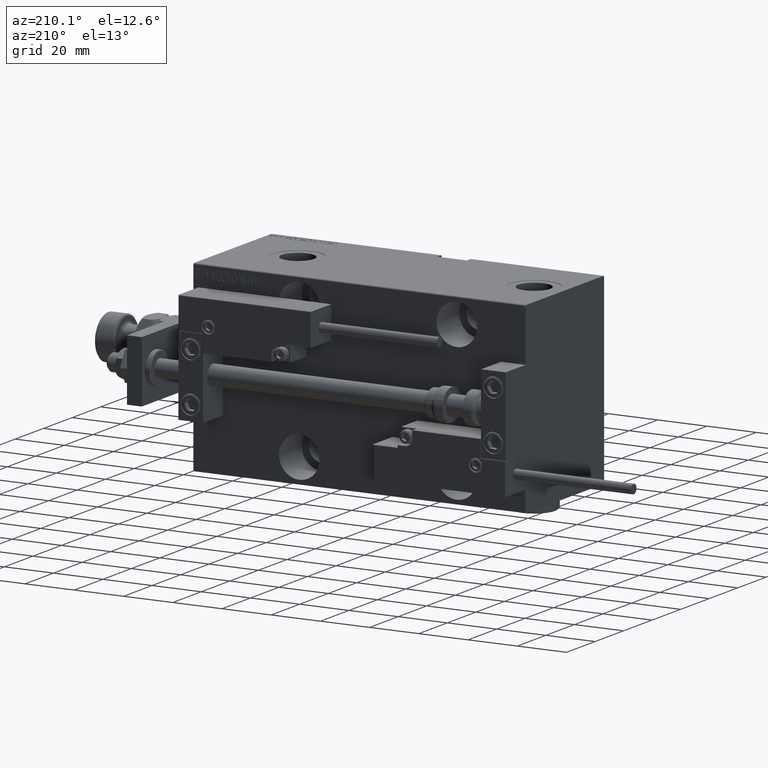
[diagram: clean part render]
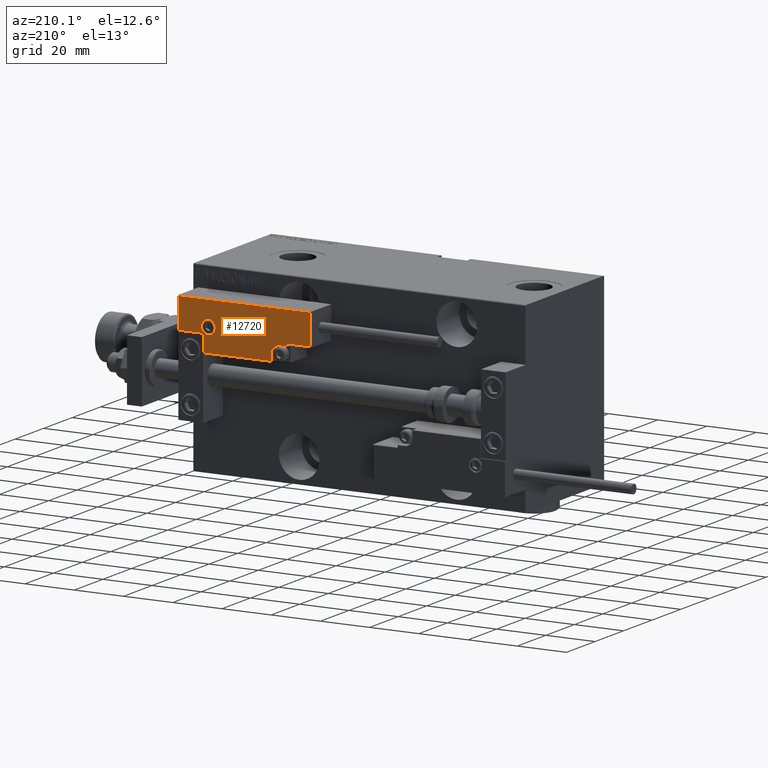
[diagram: same view with one face highlighted and labeled with its STEP entity id]
A machine part, auxiliary view. The second image highlights one B-rep face of the part: STEP entity #12720.
In plain terms, the highlighted planar face has unit normal (0, 1, -0).
Its self-contained STEP definition (entity closure, byte-faithful):
#29 = VERTEX_POINT ( 'NONE', #823 ) ;
#139 = CARTESIAN_POINT ( 'NONE',  ( 26.70000000000006324, 19.70000000000001705, 14.00000000000000000 ) ) ;
#489 = LINE ( 'NONE', #49455, #32553 ) ;
#823 = CARTESIAN_POINT ( 'NONE',  ( -17.59999999999994813, 9.800000000000004263, 14.00000000000000000 ) ) ;
#1317 = CARTESIAN_POINT ( 'NONE',  ( 16.69999999999999929, 6.300000000000003375, 14.00000000000000000 ) ) ;
#1355 = EDGE_CURVE ( 'NONE', #23381, #37139, #27229, .T. ) ;
#1806 = DIRECTION ( 'NONE',  ( 0.000000000000000000, 1.000000000000000000, -0.000000000000000000 ) ) ;
#1939 = DIRECTION ( 'NONE',  ( 0.000000000000000000, -0.000000000000000000, -1.000000000000000000 ) ) ;
#1991 = VECTOR ( 'NONE', #26924, 1000.000000000000000 ) ;
#2021 = VERTEX_POINT ( 'NONE', #9572 ) ;
#2525 = CARTESIAN_POINT ( 'NONE',  ( -26.69999999999994600, 7.300000000000005151, 14.00000000000000000 ) ) ;
#2671 = ORIENTED_EDGE ( 'NONE', *, *, #33740, .T. ) ;
#2913 = CIRCLE ( 'NONE', #47307, 2.800000000000000266 ) ;
#2934 = ORIENTED_EDGE ( 'NONE', *, *, #5119, .T. ) ;
#3146 = CARTESIAN_POINT ( 'NONE',  ( -16.69999999999999218, 3.252606517456513302E-15, 14.00000000000000000 ) ) ;
#3476 = EDGE_CURVE ( 'NONE', #15599, #29, #36671, .T. ) ;
#3602 = DIRECTION ( 'NONE',  ( 0.000000000000000000, -0.000000000000000000, -1.000000000000000000 ) ) ;
#4131 = FACE_OUTER_BOUND ( 'NONE', #49523, .T. ) ;
#4436 = AXIS2_PLACEMENT_3D ( 'NONE', #37045, #7897, #23948 ) ;
#4552 = LINE ( 'NONE', #21149, #5995 ) ;
#4692 = EDGE_CURVE ( 'NONE', #28467, #24908, #14916, .T. ) ;
#5119 = EDGE_CURVE ( 'NONE', #7379, #23381, #26889, .T. ) ;
#5932 = ORIENTED_EDGE ( 'NONE', *, *, #19986, .T. ) ;
#5995 = VECTOR ( 'NONE', #8311, 1000.000000000000000 ) ;
#6321 = DIRECTION ( 'NONE',  ( -0.000000000000000000, 1.000000000000000000, -0.000000000000000000 ) ) ;
#6399 = LINE ( 'NONE', #27818, #44727 ) ;
#6412 = DIRECTION ( 'NONE',  ( 0.000000000000000000, -0.000000000000000000, -1.000000000000000000 ) ) ;
#7093 = VERTEX_POINT ( 'NONE', #1317 ) ;
#7121 = CARTESIAN_POINT ( 'NONE',  ( -16.69999999999999218, 0.3000000000000032085, 14.00000000000000000 ) ) ;
#7379 = VERTEX_POINT ( 'NONE', #23094 ) ;
#7500 = CIRCLE ( 'NONE', #35684, 3.299999999999997158 ) ;
#7590 = LINE ( 'NONE', #32191, #37986 ) ;
#7636 = PLANE ( 'NONE',  #4436 ) ;
#7897 = DIRECTION ( 'NONE',  ( -0.000000000000000000, 0.000000000000000000, 1.000000000000000000 ) ) ;
#8311 = DIRECTION ( 'NONE',  ( -1.000000000000000000, 6.424901762877063495E-17, -0.000000000000000000 ) ) ;
#8792 = ORIENTED_EDGE ( 'NONE', *, *, #33923, .T. ) ;
#9572 = CARTESIAN_POINT ( 'NONE',  ( 10.69999999999999929, 3.000000000000003109, 14.00000000000000000 ) ) ;
#10237 = EDGE_CURVE ( 'NONE', #20793, #7093, #489, .T. ) ;
#10615 = CARTESIAN_POINT ( 'NONE',  ( 10.69999999999999929, 3.000000000000003109, 14.00000000000000000 ) ) ;
#10641 = DIRECTION ( 'NONE',  ( 0.000000000000000000, -1.000000000000000000, 0.000000000000000000 ) ) ;
#12720 = ADVANCED_FACE ( 'NONE', ( #32239, #4131 ), #7636, .T. ) ;
#13380 = ORIENTED_EDGE ( 'NONE', *, *, #10237, .T. ) ;
#14465 = LINE ( 'NONE', #34794, #49333 ) ;
#14916 = LINE ( 'NONE', #3146, #37325 ) ;
#15272 = DIRECTION ( 'NONE',  ( 1.000000000000000000, -1.734723475976815230E-16, 0.000000000000000000 ) ) ;
#15599 = VERTEX_POINT ( 'NONE', #50657 ) ;
#18642 = VECTOR ( 'NONE', #1806, 1000.000000000000000 ) ;
#18871 = CARTESIAN_POINT ( 'NONE',  ( 27.00000000000006395, 7.300000000000007816, 14.00000000000000000 ) ) ;
#19649 = ORIENTED_EDGE ( 'NONE', *, *, #31300, .T. ) ;
#19943 = ORIENTED_EDGE ( 'NONE', *, *, #50866, .T. ) ;
#19986 = EDGE_CURVE ( 'NONE', #29, #15599, #2913, .T. ) ;
#20793 = VERTEX_POINT ( 'NONE', #40276 ) ;
#21149 = CARTESIAN_POINT ( 'NONE',  ( -26.99999999999993605, 19.70000000000002061, 14.00000000000000000 ) ) ;
#22121 = LINE ( 'NONE', #10615, #34996 ) ;
#23094 = CARTESIAN_POINT ( 'NONE',  ( 16.69999999999999929, 7.300000000000009592, 14.00000000000000000 ) ) ;
#23181 = LINE ( 'NONE', #51808, #1991 ) ;
#23381 = VERTEX_POINT ( 'NONE', #29397 ) ;
#23793 = EDGE_LOOP ( 'NONE', ( #44751, #5932 ) ) ;
#23948 = DIRECTION ( 'NONE',  ( 1.000000000000000000, 0.000000000000000000, 0.000000000000000000 ) ) ;
#24204 = ORIENTED_EDGE ( 'NONE', *, *, #41272, .T. ) ;
#24629 = ORIENTED_EDGE ( 'NONE', *, *, #28422, .T. ) ;
#24908 = VERTEX_POINT ( 'NONE', #7121 ) ;
#25000 = VECTOR ( 'NONE', #30629, 1000.000000000000000 ) ;
#26558 = CARTESIAN_POINT ( 'NONE',  ( 13.99999999999999822, 3.000000000000002665, 14.00000000000000000 ) ) ;
#26889 = LINE ( 'NONE', #18871, #25000 ) ;
#26924 = DIRECTION ( 'NONE',  ( 9.912705577010318647E-16, 1.000000000000000000, 0.000000000000000000 ) ) ;
#27229 = LINE ( 'NONE', #43552, #18642 ) ;
#27818 = CARTESIAN_POINT ( 'NONE',  ( -26.69999999999994600, 7.000000000000005329, 14.00000000000000000 ) ) ;
#28422 = EDGE_CURVE ( 'NONE', #2021, #20793, #7500, .T. ) ;
#28467 = VERTEX_POINT ( 'NONE', #35657 ) ;
#28469 = CARTESIAN_POINT ( 'NONE',  ( -14.79999999999994920, 9.800000000000004263, 14.00000000000000000 ) ) ;
#28585 = DIRECTION ( 'NONE',  ( 1.000000000000000000, 5.782411586589357639E-16, -0.000000000000000000 ) ) ;
#29397 = CARTESIAN_POINT ( 'NONE',  ( 26.70000000000006324, 7.300000000000007816, 14.00000000000000000 ) ) ;
#30231 = CARTESIAN_POINT ( 'NONE',  ( -14.79999999999994920, 9.800000000000004263, 14.00000000000000000 ) ) ;
#30629 = DIRECTION ( 'NONE',  ( 1.000000000000000000, -1.734723475976796001E-16, 0.000000000000000000 ) ) ;
#30655 = AXIS2_PLACEMENT_3D ( 'NONE', #28469, #3602, #52556 ) ;
#31300 = EDGE_CURVE ( 'NONE', #37139, #42814, #4552, .T. ) ;
#32191 = CARTESIAN_POINT ( 'NONE',  ( 11.00000000000000000, 0.3000000000000032085, 14.00000000000000000 ) ) ;
#32239 = FACE_BOUND ( 'NONE', #23793, .T. ) ;
#32553 = VECTOR ( 'NONE', #28585, 1000.000000000000000 ) ;
#33155 = ORIENTED_EDGE ( 'NONE', *, *, #36829, .T. ) ;
#33740 = EDGE_CURVE ( 'NONE', #42814, #46467, #6399, .T. ) ;
#33923 = EDGE_CURVE ( 'NONE', #7093, #7379, #23181, .T. ) ;
#34794 = CARTESIAN_POINT ( 'NONE',  ( -16.99999999999999289, 7.300000000000003375, 14.00000000000000000 ) ) ;
#34996 = VECTOR ( 'NONE', #6321, 1000.000000000000000 ) ;
#35657 = CARTESIAN_POINT ( 'NONE',  ( -16.69999999999999218, 7.300000000000003375, 14.00000000000000000 ) ) ;
#35684 = AXIS2_PLACEMENT_3D ( 'NONE', #26558, #1939, #46111 ) ;
#36671 = CIRCLE ( 'NONE', #30655, 2.800000000000000266 ) ;
#36829 = EDGE_CURVE ( 'NONE', #24908, #51372, #7590, .T. ) ;
#37045 = CARTESIAN_POINT ( 'NONE',  ( 0.000000000000000000, 0.000000000000000000, 14.00000000000000000 ) ) ;
#37139 = VERTEX_POINT ( 'NONE', #139 ) ;
#37325 = VECTOR ( 'NONE', #10641, 1000.000000000000000 ) ;
#37986 = VECTOR ( 'NONE', #48523, 1000.000000000000000 ) ;
#38288 = CARTESIAN_POINT ( 'NONE',  ( 10.69999999999999929, 0.3000000000000032085, 14.00000000000000000 ) ) ;
#39511 = CARTESIAN_POINT ( 'NONE',  ( -26.69999999999993534, 19.70000000000002061, 14.00000000000000000 ) ) ;
#40276 = CARTESIAN_POINT ( 'NONE',  ( 13.99999999999999822, 6.300000000000001599, 14.00000000000000000 ) ) ;
#41272 = EDGE_CURVE ( 'NONE', #46467, #28467, #14465, .T. ) ;
#42350 = ORIENTED_EDGE ( 'NONE', *, *, #1355, .T. ) ;
#42814 = VERTEX_POINT ( 'NONE', #39511 ) ;
#43552 = CARTESIAN_POINT ( 'NONE',  ( 26.70000000000006324, 20.00000000000001776, 14.00000000000000000 ) ) ;
#44138 = DIRECTION ( 'NONE',  ( -8.006416042969869188E-16, -1.000000000000000000, 0.000000000000000000 ) ) ;
#44727 = VECTOR ( 'NONE', #44138, 1000.000000000000000 ) ;
#44751 = ORIENTED_EDGE ( 'NONE', *, *, #3476, .T. ) ;
#46111 = DIRECTION ( 'NONE',  ( 1.000000000000000000, 0.000000000000000000, 0.000000000000000000 ) ) ;
#46467 = VERTEX_POINT ( 'NONE', #2525 ) ;
#46549 = DIRECTION ( 'NONE',  ( 1.000000000000000000, 0.000000000000000000, 0.000000000000000000 ) ) ;
#47307 = AXIS2_PLACEMENT_3D ( 'NONE', #30231, #6412, #46549 ) ;
#48523 = DIRECTION ( 'NONE',  ( 1.000000000000000000, -0.000000000000000000, 0.000000000000000000 ) ) ;
#49333 = VECTOR ( 'NONE', #15272, 1000.000000000000000 ) ;
#49455 = CARTESIAN_POINT ( 'NONE',  ( 17.00000000000000000, 6.300000000000003375, 14.00000000000000000 ) ) ;
#49523 = EDGE_LOOP ( 'NONE', ( #52636, #33155, #19943, #24629, #13380, #8792, #2934, #42350, #19649, #2671, #24204 ) ) ;
#50657 = CARTESIAN_POINT ( 'NONE',  ( -11.99999999999994849, 9.800000000000004263, 14.00000000000000000 ) ) ;
#50866 = EDGE_CURVE ( 'NONE', #51372, #2021, #22121, .T. ) ;
#51372 = VERTEX_POINT ( 'NONE', #38288 ) ;
#51808 = CARTESIAN_POINT ( 'NONE',  ( 16.69999999999999929, 7.000000000000009770, 14.00000000000000000 ) ) ;
#52556 = DIRECTION ( 'NONE',  ( 1.000000000000000000, 0.000000000000000000, 0.000000000000000000 ) ) ;
#52636 = ORIENTED_EDGE ( 'NONE', *, *, #4692, .T. ) ;